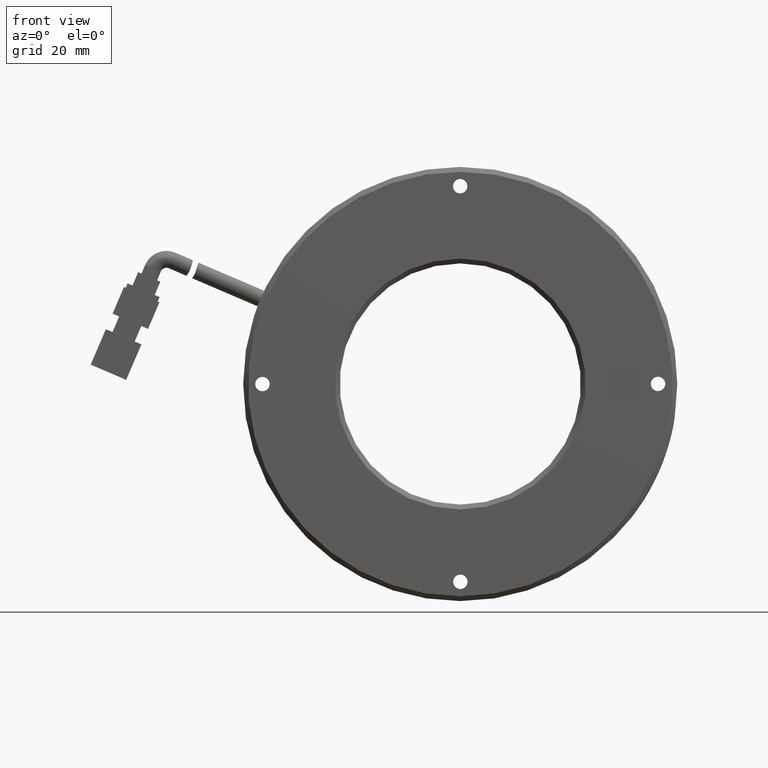
[diagram: clean part render]
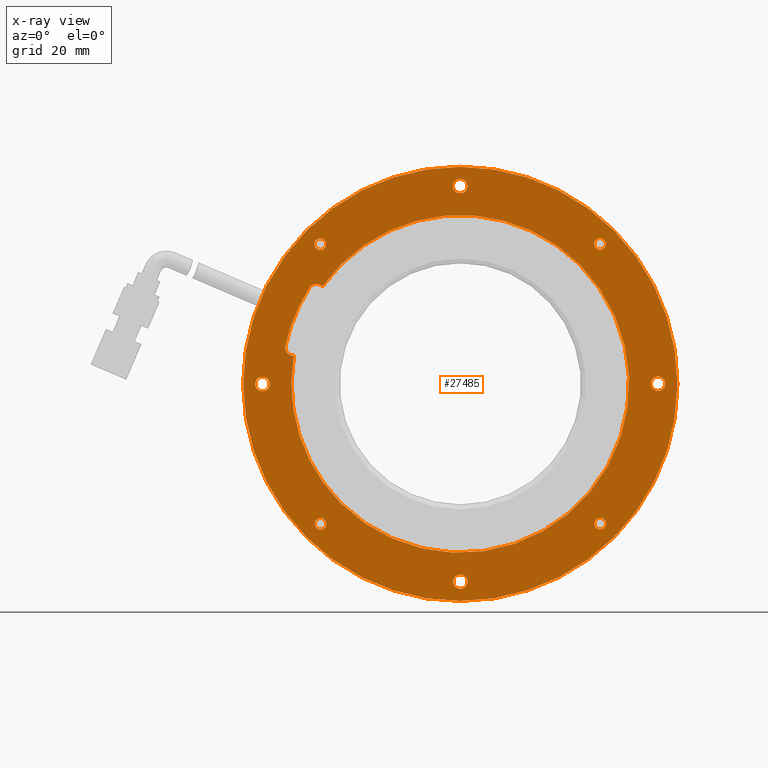
[diagram: x-ray — body ghosted, one internal face saturated and labeled with its STEP entity id]
A machine part, front view, then the same camera in x-ray: the body is ghosted and one INTERNAL B-rep face — a face not visible from any outside direction — is saturated and labeled: STEP entity #27485.
In plain terms, the highlighted planar face has unit normal (-0, 1, -0).
Its self-contained STEP definition (entity closure, byte-faithful):
#199 = FACE_BOUND ( 'NONE', #1518, .T. ) ;
#366 = CIRCLE ( 'NONE', #2762, 1.800000000000000500 ) ;
#655 = EDGE_CURVE ( 'NONE', #21474, #39424, #39389, .T. ) ;
#687 = CARTESIAN_POINT ( 'NONE',  ( -32.65576092597669300, 5.623552123552117100, 8.000046319809095900 ) ) ;
#764 = EDGE_CURVE ( 'NONE', #16374, #15723, #15733, .T. ) ;
#1182 = FACE_OUTER_BOUND ( 'NONE', #11187, .T. ) ;
#1192 = VERTEX_POINT ( 'NONE', #17764 ) ;
#1518 = EDGE_LOOP ( 'NONE', ( #32297, #32968 ) ) ;
#1611 = CIRCLE ( 'NONE', #38705, 37.10000000000000900 ) ;
#1806 = CIRCLE ( 'NONE', #27610, 1.499999999999990500 ) ;
#2030 = DIRECTION ( 'NONE',  ( -1.163897087407499700E-016, 1.000000000000000000, -2.939373556709199600E-017 ) ) ;
#2126 = CARTESIAN_POINT ( 'NONE',  ( 3.571428571428565800, 5.623552123552121500, 0.0000000000000000000 ) ) ;
#2221 = ORIENTED_EDGE ( 'NONE', *, *, #15111, .F. ) ;
#2762 = AXIS2_PLACEMENT_3D ( 'NONE', #35061, #35135, #35265 ) ;
#3098 = ORIENTED_EDGE ( 'NONE', *, *, #16594, .F. ) ;
#3770 = CIRCLE ( 'NONE', #24900, 1.199999999999998800 ) ;
#4035 = EDGE_CURVE ( 'NONE', #34888, #1192, #366, .T. ) ;
#4200 = CARTESIAN_POINT ( 'NONE',  ( 45.63120003048781800, 5.623552123552126900, 1.095335061818939500 ) ) ;
#4631 = CIRCLE ( 'NONE', #21698, 45.00000000000000000 ) ;
#4735 = AXIS2_PLACEMENT_3D ( 'NONE', #13111, #35174, #16268 ) ;
#4802 = CARTESIAN_POINT ( 'NONE',  ( 3.571428571428565800, 5.623552123552121500, 0.0000000000000000000 ) ) ;
#5056 = ORIENTED_EDGE ( 'NONE', *, *, #19056, .T. ) ;
#5239 = EDGE_CURVE ( 'NONE', #21209, #7420, #39765, .T. ) ;
#5285 = DIRECTION ( 'NONE',  ( 0.7065235946279216900, 9.912705577010326800E-017, 0.7076894871580616800 ) ) ;
#5366 = EDGE_CURVE ( 'NONE', #18545, #23308, #8760, .T. ) ;
#5426 = CIRCLE ( 'NONE', #4735, 45.00000000000000000 ) ;
#5482 = ORIENTED_EDGE ( 'NONE', *, *, #12824, .F. ) ;
#5523 = DIRECTION ( 'NONE',  ( 1.163897087407499700E-016, -1.000000000000000000, 2.939373556709199600E-017 ) ) ;
#5858 = ORIENTED_EDGE ( 'NONE', *, *, #4035, .F. ) ;
#6004 = AXIS2_PLACEMENT_3D ( 'NONE', #31207, #12316, #34376 ) ;
#6154 = VERTEX_POINT ( 'NONE', #14664 ) ;
#6287 = ORIENTED_EDGE ( 'NONE', *, *, #36075, .F. ) ;
#6721 = DIRECTION ( 'NONE',  ( 1.163897087407499700E-016, -1.000000000000000000, 2.939373556709199600E-017 ) ) ;
#6736 = DIRECTION ( 'NONE',  ( 1.163897087407499700E-016, -1.000000000000000000, 2.939373556709199600E-017 ) ) ;
#7018 = AXIS2_PLACEMENT_3D ( 'NONE', #36547, #17655, #39680 ) ;
#7420 = VERTEX_POINT ( 'NONE', #18164 ) ;
#7508 = VERTEX_POINT ( 'NONE', #36253 ) ;
#7644 = CARTESIAN_POINT ( 'NONE',  ( -26.29166871560546100, 5.623552123552118900, 28.11823999515511500 ) ) ;
#7719 = DIRECTION ( 'NONE',  ( -0.7065235946279214700, 0.0000000000000000000, -0.7076894871580617900 ) ) ;
#7733 = ORIENTED_EDGE ( 'NONE', *, *, #38328, .F. ) ;
#7870 = CARTESIAN_POINT ( 'NONE',  ( -26.24386712186973000, 5.623552123552118900, -29.86449635807019500 ) ) ;
#7918 = EDGE_LOOP ( 'NONE', ( #26341, #5056 ) ) ;
#7929 = ORIENTED_EDGE ( 'NONE', *, *, #32040, .F. ) ;
#7974 = DIRECTION ( 'NONE',  ( 0.7065235946279216900, 9.637352644315595200E-017, 0.7076894871580614600 ) ) ;
#8032 = DIRECTION ( 'NONE',  ( -1.163897087407499700E-016, 1.000000000000000000, -2.939373556709199600E-017 ) ) ;
#8086 = EDGE_CURVE ( 'NONE', #6154, #39620, #29430, .T. ) ;
#8388 = DIRECTION ( 'NONE',  ( 1.163897087407499700E-016, -1.000000000000000000, 2.939373556709199600E-017 ) ) ;
#8394 = CARTESIAN_POINT ( 'NONE',  ( -25.39603880831622700, 5.623552123552118900, -29.01526897348052400 ) ) ;
#8580 = FACE_BOUND ( 'NONE', #16643, .T. ) ;
#8718 = AXIS2_PLACEMENT_3D ( 'NONE', #2126, #24190, #5285 ) ;
#8760 = CIRCLE ( 'NONE', #30034, 1.499999999999996700 ) ;
#9268 = EDGE_LOOP ( 'NONE', ( #35212, #2221, #7733, #6287, #15543, #23035, #5858 ) ) ;
#9442 = CIRCLE ( 'NONE', #17074, 1.199999999999998800 ) ;
#9506 = ORIENTED_EDGE ( 'NONE', *, *, #20992, .F. ) ;
#9570 = FACE_BOUND ( 'NONE', #13232, .T. ) ;
#9824 = CARTESIAN_POINT ( 'NONE',  ( 33.38672426472686500, 5.623552123552124200, 29.86449635807019800 ) ) ;
#10085 = DIRECTION ( 'NONE',  ( -1.163897087407499700E-016, 1.000000000000000000, -2.939373556709199600E-017 ) ) ;
#10247 = CARTESIAN_POINT ( 'NONE',  ( -25.44384040205195800, 5.623552123552118900, 28.96746737974478900 ) ) ;
#10606 = DIRECTION ( 'NONE',  ( -1.163897087407499700E-016, 1.000000000000000000, -2.939373556709199600E-017 ) ) ;
#10897 = CARTESIAN_POINT ( 'NONE',  ( -37.42855749568880700, 5.623552123552118000, -0.03380083108155823600 ) ) ;
#11187 = EDGE_LOOP ( 'NONE', ( #26153, #7929 ) ) ;
#11538 = DIRECTION ( 'NONE',  ( 0.7065235946279211400, 0.0000000000000000000, 0.7076894871580620100 ) ) ;
#11756 = VERTEX_POINT ( 'NONE', #13660 ) ;
#12061 = DIRECTION ( 'NONE',  ( 1.163897087407499700E-016, -1.000000000000000000, 2.939373556709199000E-017 ) ) ;
#12316 = DIRECTION ( 'NONE',  ( -1.163897087407499700E-016, 1.000000000000000000, -2.939373556709199600E-017 ) ) ;
#12360 = CARTESIAN_POINT ( 'NONE',  ( -28.27459835068420100, 5.623552123552118900, 31.79356175825647700 ) ) ;
#12601 = DIRECTION ( 'NONE',  ( 1.163897087407499700E-016, -1.000000000000000000, 2.939373556709199000E-017 ) ) ;
#12717 = EDGE_LOOP ( 'NONE', ( #5482, #36063 ) ) ;
#12732 = CARTESIAN_POINT ( 'NONE',  ( -30.89810752718073800, 5.623552123552117100, 7.611903910761753900 ) ) ;
#12824 = EDGE_CURVE ( 'NONE', #39424, #21474, #28146, .T. ) ;
#12914 = CARTESIAN_POINT ( 'NONE',  ( 3.571428571428565800, 5.623552123552121500, 0.0000000000000000000 ) ) ;
#13050 = CARTESIAN_POINT ( 'NONE',  ( 4.597413132288457900, 5.623552123552124200, 42.06152029785445700 ) ) ;
#13111 = CARTESIAN_POINT ( 'NONE',  ( 3.571428571428565800, 5.623552123552121500, 0.0000000000000000000 ) ) ;
#13232 = EDGE_LOOP ( 'NONE', ( #23256, #32615 ) ) ;
#13394 = CIRCLE ( 'NONE', #33890, 1.499999999999994400 ) ;
#13410 = DIRECTION ( 'NONE',  ( 0.7065235946279211400, 0.0000000000000000000, 0.7076894871580620100 ) ) ;
#13660 = CARTESIAN_POINT ( 'NONE',  ( 2.545444010568383800, 5.623552123552122400, -42.06152029785446400 ) ) ;
#13682 = VERTEX_POINT ( 'NONE', #4200 ) ;
#13755 = CARTESIAN_POINT ( 'NONE',  ( -28.22213318682790400, 5.623552123552117100, -31.84602692211277400 ) ) ;
#13786 = CARTESIAN_POINT ( 'NONE',  ( 31.73886923135559000, 5.623552123552124200, -29.81669476433446800 ) ) ;
#14584 = EDGE_CURVE ( 'NONE', #13682, #36189, #28725, .T. ) ;
#14596 = CIRCLE ( 'NONE', #14786, 1.800000000000001800 ) ;
#14664 = CARTESIAN_POINT ( 'NONE',  ( 33.43452585846260000, 5.623552123552124200, -28.11823999515512200 ) ) ;
#14747 = VERTEX_POINT ( 'NONE', #40831 ) ;
#14765 = EDGE_CURVE ( 'NONE', #1192, #31809, #1611, .T. ) ;
#14786 = AXIS2_PLACEMENT_3D ( 'NONE', #12732, #34792, #15888 ) ;
#15111 = EDGE_CURVE ( 'NONE', #7508, #18782, #15305, .T. ) ;
#15305 = CIRCLE ( 'NONE', #8718, 35.00000000000000000 ) ;
#15524 = DIRECTION ( 'NONE',  ( 0.7065235946279216900, 1.030337130463465200E-016, 0.7076894871580615700 ) ) ;
#15543 = ORIENTED_EDGE ( 'NONE', *, *, #23895, .F. ) ;
#15565 = DIRECTION ( 'NONE',  ( -1.163897087407499700E-016, 1.000000000000000000, -2.939373556709199600E-017 ) ) ;
#15723 = VERTEX_POINT ( 'NONE', #21341 ) ;
#15733 = CIRCLE ( 'NONE', #17377, 1.499999999999990500 ) ;
#15888 = DIRECTION ( 'NONE',  ( -0.7076894871580605700, 0.0000000000000000000, 0.7065235946279225800 ) ) ;
#16081 = DIRECTION ( 'NONE',  ( 0.7065235946279230200, 9.912705577010326800E-017, 0.7076894871580603500 ) ) ;
#16268 = DIRECTION ( 'NONE',  ( 0.7065235946279216900, 9.637352644315595200E-017, 0.7076894871580614600 ) ) ;
#16374 = VERTEX_POINT ( 'NONE', #39711 ) ;
#16594 = EDGE_CURVE ( 'NONE', #14747, #32573, #3770, .T. ) ;
#16643 = EDGE_LOOP ( 'NONE', ( #36754, #30280 ) ) ;
#16906 = FACE_BOUND ( 'NONE', #23543, .T. ) ;
#16962 = EDGE_CURVE ( 'NONE', #36189, #13682, #29213, .T. ) ;
#17074 = AXIS2_PLACEMENT_3D ( 'NONE', #8394, #30433, #11538 ) ;
#17377 = AXIS2_PLACEMENT_3D ( 'NONE', #10897, #10606, #7719 ) ;
#17652 = AXIS2_PLACEMENT_3D ( 'NONE', #30971, #12061, #34124 ) ;
#17655 = DIRECTION ( 'NONE',  ( 1.163897087407499700E-016, -1.000000000000000000, 2.939373556709199600E-017 ) ) ;
#17656 = AXIS2_PLACEMENT_3D ( 'NONE', #27255, #8388, #30428 ) ;
#17764 = CARTESIAN_POINT ( 'NONE',  ( -27.73481708218294300, 5.623552123552118900, 19.90801303685858400 ) ) ;
#17850 = ORIENTED_EDGE ( 'NONE', *, *, #30336, .F. ) ;
#17919 = FACE_BOUND ( 'NONE', #12717, .T. ) ;
#18072 = CARTESIAN_POINT ( 'NONE',  ( 35.36499032968504300, 5.623552123552126000, 31.84602692211276700 ) ) ;
#18164 = CARTESIAN_POINT ( 'NONE',  ( -24.54821049476272100, 5.623552123552118900, -28.16604158889084900 ) ) ;
#18383 = CARTESIAN_POINT ( 'NONE',  ( 2.477842348404698300, 5.623552123552124200, 39.93845183638028100 ) ) ;
#18408 = AXIS2_PLACEMENT_3D ( 'NONE', #20901, #2030, #24093 ) ;
#18545 = VERTEX_POINT ( 'NONE', #18383 ) ;
#18609 = AXIS2_PLACEMENT_3D ( 'NONE', #25593, #6721, #28732 ) ;
#18693 = CIRCLE ( 'NONE', #7018, 1.200000000000001300 ) ;
#18782 = VERTEX_POINT ( 'NONE', #26670 ) ;
#18789 = DIRECTION ( 'NONE',  ( -1.163897087407499700E-016, 1.000000000000000000, -2.939373556709199600E-017 ) ) ;
#19056 = EDGE_CURVE ( 'NONE', #15723, #16374, #1806, .T. ) ;
#19435 = CARTESIAN_POINT ( 'NONE',  ( 4.665014794452143400, 5.623552123552122400, -39.93845183638028800 ) ) ;
#19617 = DIRECTION ( 'NONE',  ( 0.7065235946279211400, 0.0000000000000000000, 0.7076894871580620100 ) ) ;
#19756 = DIRECTION ( 'NONE',  ( 1.163897087407499700E-016, -1.000000000000000000, 2.939373556709199600E-017 ) ) ;
#19887 = CARTESIAN_POINT ( 'NONE',  ( 32.53889595117335900, 5.623552123552124200, 29.01526897348052700 ) ) ;
#20233 = CARTESIAN_POINT ( 'NONE',  ( 43.51162924660406600, 5.623552123552126900, -1.027733399655238700 ) ) ;
#20620 = AXIS2_PLACEMENT_3D ( 'NONE', #12914, #34993, #16081 ) ;
#20901 = CARTESIAN_POINT ( 'NONE',  ( 44.57141463854593900, 5.623552123552126900, 0.03380083108184966900 ) ) ;
#20992 = EDGE_CURVE ( 'NONE', #39620, #6154, #37673, .T. ) ;
#21209 = VERTEX_POINT ( 'NONE', #7870 ) ;
#21231 = VERTEX_POINT ( 'NONE', #23867 ) ;
#21341 = CARTESIAN_POINT ( 'NONE',  ( -36.36877210374692700, 5.623552123552118000, 1.027733399655528000 ) ) ;
#21474 = VERTEX_POINT ( 'NONE', #25206 ) ;
#21698 = AXIS2_PLACEMENT_3D ( 'NONE', #4802, #26839, #7974 ) ;
#21996 = AXIS2_PLACEMENT_3D ( 'NONE', #28954, #10085, #32145 ) ;
#22578 = AXIS2_PLACEMENT_3D ( 'NONE', #24423, #5523, #27564 ) ;
#22821 = AXIS2_PLACEMENT_3D ( 'NONE', #25601, #6736, #28744 ) ;
#23035 = ORIENTED_EDGE ( 'NONE', *, *, #14765, .F. ) ;
#23256 = ORIENTED_EDGE ( 'NONE', *, *, #34544, .F. ) ;
#23308 = VERTEX_POINT ( 'NONE', #13050 ) ;
#23424 = ORIENTED_EDGE ( 'NONE', *, *, #37256, .T. ) ;
#23543 = EDGE_LOOP ( 'NONE', ( #3098, #17850 ) ) ;
#23777 = EDGE_CURVE ( 'NONE', #18782, #34888, #32860, .T. ) ;
#23867 = CARTESIAN_POINT ( 'NONE',  ( -30.94255977346659500, 5.623552123552117100, 5.812452883976019900 ) ) ;
#23895 = EDGE_CURVE ( 'NONE', #31809, #21231, #14596, .T. ) ;
#24059 = CIRCLE ( 'NONE', #20620, 35.00000000000000000 ) ;
#24093 = DIRECTION ( 'NONE',  ( -0.7065235946279235800, 0.0000000000000000000, -0.7076894871580596800 ) ) ;
#24190 = DIRECTION ( 'NONE',  ( 1.163897087407499700E-016, -1.000000000000000000, 2.939373556709199600E-017 ) ) ;
#24364 = VERTEX_POINT ( 'NONE', #19435 ) ;
#24372 = FACE_BOUND ( 'NONE', #7918, .T. ) ;
#24423 = CARTESIAN_POINT ( 'NONE',  ( 32.53889595117335900, 5.623552123552124200, 29.01526897348052700 ) ) ;
#24900 = AXIS2_PLACEMENT_3D ( 'NONE', #10247, #32290, #13410 ) ;
#25206 = CARTESIAN_POINT ( 'NONE',  ( 31.69106763761985600, 5.623552123552124200, 28.16604158889085200 ) ) ;
#25330 = FACE_BOUND ( 'NONE', #33976, .T. ) ;
#25593 = CARTESIAN_POINT ( 'NONE',  ( 3.571428571428565800, 5.623552123552121500, 0.0000000000000000000 ) ) ;
#25601 = CARTESIAN_POINT ( 'NONE',  ( 32.58669754490909300, 5.623552123552124200, -28.96746737974479700 ) ) ;
#26153 = ORIENTED_EDGE ( 'NONE', *, *, #35534, .F. ) ;
#26157 = DIRECTION ( 'NONE',  ( -0.7065235946279202500, 0.0000000000000000000, -0.7076894871580629000 ) ) ;
#26203 = DIRECTION ( 'NONE',  ( -1.163897087407499700E-016, 1.000000000000000000, -2.939373556709199600E-017 ) ) ;
#26225 = ORIENTED_EDGE ( 'NONE', *, *, #8086, .F. ) ;
#26294 = CARTESIAN_POINT ( 'NONE',  ( 3.537627740346577500, 5.623552123552124200, 40.99998606711736900 ) ) ;
#26341 = ORIENTED_EDGE ( 'NONE', *, *, #764, .T. ) ;
#26491 = EDGE_CURVE ( 'NONE', #23308, #18545, #40839, .T. ) ;
#26670 = CARTESIAN_POINT ( 'NONE',  ( -24.97709561632381500, 5.623552123552118900, 20.24800648709194200 ) ) ;
#26743 = AXIS2_PLACEMENT_3D ( 'NONE', #34473, #15565, #37601 ) ;
#26839 = DIRECTION ( 'NONE',  ( -1.163897087407499700E-016, 1.000000000000000000, -2.939373556709199600E-017 ) ) ;
#26903 = CARTESIAN_POINT ( 'NONE',  ( 3.605229402510262900, 5.623552123552122400, -40.99998606711737600 ) ) ;
#27255 = CARTESIAN_POINT ( 'NONE',  ( 32.58669754490909300, 5.623552123552124200, -28.96746737974479700 ) ) ;
#27485 = ADVANCED_FACE ( 'NONE', ( #33714, #1182, #17919, #25330, #9570, #16906, #8580, #199, #32713, #24372 ), #40584, .F. ) ;
#27564 = DIRECTION ( 'NONE',  ( 0.7065235946279211400, 0.0000000000000000000, 0.7076894871580620100 ) ) ;
#27610 = AXIS2_PLACEMENT_3D ( 'NONE', #37634, #18789, #40814 ) ;
#27975 = ORIENTED_EDGE ( 'NONE', *, *, #29128, .T. ) ;
#28146 = CIRCLE ( 'NONE', #22578, 1.199999999999998800 ) ;
#28725 = CIRCLE ( 'NONE', #18408, 1.499999999999995600 ) ;
#28732 = DIRECTION ( 'NONE',  ( 0.7065235946279216900, 9.912705577010326800E-017, 0.7076894871580616800 ) ) ;
#28744 = DIRECTION ( 'NONE',  ( 0.7065235946279211400, 0.0000000000000000000, 0.7076894871580620100 ) ) ;
#28954 = CARTESIAN_POINT ( 'NONE',  ( 3.605229402510262900, 5.623552123552122400, -40.99998606711737600 ) ) ;
#29128 = EDGE_CURVE ( 'NONE', #11756, #24364, #31481, .T. ) ;
#29213 = CIRCLE ( 'NONE', #26743, 1.499999999999994900 ) ;
#29253 = AXIS2_PLACEMENT_3D ( 'NONE', #12360, #34425, #15524 ) ;
#29430 = CIRCLE ( 'NONE', #17656, 1.199999999999998800 ) ;
#29525 = EDGE_LOOP ( 'NONE', ( #27975, #23424 ) ) ;
#30034 = AXIS2_PLACEMENT_3D ( 'NONE', #26294, #26203, #26157 ) ;
#30075 = DIRECTION ( 'NONE',  ( -0.7065235946279192500, 0.0000000000000000000, -0.7076894871580640100 ) ) ;
#30280 = ORIENTED_EDGE ( 'NONE', *, *, #26491, .T. ) ;
#30336 = EDGE_CURVE ( 'NONE', #32573, #14747, #18693, .T. ) ;
#30428 = DIRECTION ( 'NONE',  ( 0.7065235946279211400, 0.0000000000000000000, 0.7076894871580620100 ) ) ;
#30433 = DIRECTION ( 'NONE',  ( 1.163897087407499700E-016, -1.000000000000000000, 2.939373556709199600E-017 ) ) ;
#30645 = DIRECTION ( 'NONE',  ( 0.7065235946279225800, 0.0000000000000000000, 0.7076894871580605700 ) ) ;
#30702 = CARTESIAN_POINT ( 'NONE',  ( -21.15689724054869500, 5.623552123552118000, -24.76913205053216100 ) ) ;
#30726 = DIRECTION ( 'NONE',  ( 1.163897087407499700E-016, -1.000000000000000000, 2.939373556709199600E-017 ) ) ;
#30883 = CARTESIAN_POINT ( 'NONE',  ( -25.39603880831622700, 5.623552123552118900, -29.01526897348052400 ) ) ;
#30891 = AXIS2_PLACEMENT_3D ( 'NONE', #19887, #19756, #19617 ) ;
#30971 = CARTESIAN_POINT ( 'NONE',  ( -26.21591567580825500, 5.623552123552118900, 18.94212561188970100 ) ) ;
#31207 = CARTESIAN_POINT ( 'NONE',  ( 3.537627740346577500, 5.623552123552124200, 40.99998606711736900 ) ) ;
#31481 = CIRCLE ( 'NONE', #21996, 1.499999999999996700 ) ;
#31505 = CARTESIAN_POINT ( 'NONE',  ( 3.571428571428565800, 5.623552123552121500, 0.0000000000000000000 ) ) ;
#31809 = VERTEX_POINT ( 'NONE', #687 ) ;
#31924 = CARTESIAN_POINT ( 'NONE',  ( -27.48975675269276700, 5.623552123552118900, 20.21386808221996000 ) ) ;
#32040 = EDGE_CURVE ( 'NONE', #36155, #37383, #4631, .T. ) ;
#32145 = DIRECTION ( 'NONE',  ( -0.7065235946279202500, 0.0000000000000000000, -0.7076894871580629000 ) ) ;
#32290 = DIRECTION ( 'NONE',  ( 1.163897087407499700E-016, -1.000000000000000000, 2.939373556709199600E-017 ) ) ;
#32297 = ORIENTED_EDGE ( 'NONE', *, *, #16962, .T. ) ;
#32573 = VERTEX_POINT ( 'NONE', #7644 ) ;
#32615 = ORIENTED_EDGE ( 'NONE', *, *, #5239, .F. ) ;
#32622 = CIRCLE ( 'NONE', #18609, 35.00000000000000000 ) ;
#32713 = FACE_BOUND ( 'NONE', #29525, .T. ) ;
#32860 = CIRCLE ( 'NONE', #17652, 1.800000000000000500 ) ;
#32968 = ORIENTED_EDGE ( 'NONE', *, *, #14584, .T. ) ;
#33714 = FACE_BOUND ( 'NONE', #9268, .T. ) ;
#33890 = AXIS2_PLACEMENT_3D ( 'NONE', #26903, #8032, #30075 ) ;
#33976 = EDGE_LOOP ( 'NONE', ( #26225, #9506 ) ) ;
#34124 = DIRECTION ( 'NONE',  ( -0.7076894871580611300, 0.0000000000000000000, 0.7065235946279221400 ) ) ;
#34376 = DIRECTION ( 'NONE',  ( -0.7065235946279192500, 0.0000000000000000000, -0.7076894871580640100 ) ) ;
#34425 = DIRECTION ( 'NONE',  ( -1.163897087407499700E-016, 1.000000000000000000, -2.939373556709199600E-017 ) ) ;
#34473 = CARTESIAN_POINT ( 'NONE',  ( 44.57141463854593900, 5.623552123552126900, 0.03380083108184966900 ) ) ;
#34544 = EDGE_CURVE ( 'NONE', #7420, #21209, #9442, .T. ) ;
#34574 = VERTEX_POINT ( 'NONE', #30702 ) ;
#34656 = DIRECTION ( 'NONE',  ( -0.7076894871580615700, -7.013706776186549800E-017, 0.7065235946279216900 ) ) ;
#34792 = DIRECTION ( 'NONE',  ( 1.163897087407499700E-016, -1.000000000000000000, 2.939373556709199000E-017 ) ) ;
#34888 = VERTEX_POINT ( 'NONE', #31924 ) ;
#34993 = DIRECTION ( 'NONE',  ( 1.163897087407499700E-016, -1.000000000000000000, 2.939373556709199600E-017 ) ) ;
#35061 = CARTESIAN_POINT ( 'NONE',  ( -26.21591567580825500, 5.623552123552118900, 18.94212561188970100 ) ) ;
#35135 = DIRECTION ( 'NONE',  ( 1.163897087407499700E-016, -1.000000000000000000, 2.939373556709199000E-017 ) ) ;
#35174 = DIRECTION ( 'NONE',  ( -1.163897087407499700E-016, 1.000000000000000000, -2.939373556709199600E-017 ) ) ;
#35212 = ORIENTED_EDGE ( 'NONE', *, *, #23777, .F. ) ;
#35265 = DIRECTION ( 'NONE',  ( -0.7076894871580611300, 0.0000000000000000000, 0.7065235946279221400 ) ) ;
#35534 = EDGE_CURVE ( 'NONE', #37383, #36155, #5426, .T. ) ;
#36063 = ORIENTED_EDGE ( 'NONE', *, *, #655, .F. ) ;
#36075 = EDGE_CURVE ( 'NONE', #21231, #34574, #24059, .T. ) ;
#36155 = VERTEX_POINT ( 'NONE', #13755 ) ;
#36189 = VERTEX_POINT ( 'NONE', #20233 ) ;
#36253 = CARTESIAN_POINT ( 'NONE',  ( 28.29975438340582600, 5.623552123552125100, 24.76913205053215700 ) ) ;
#36547 = CARTESIAN_POINT ( 'NONE',  ( -25.44384040205195800, 5.623552123552118900, 28.96746737974478900 ) ) ;
#36754 = ORIENTED_EDGE ( 'NONE', *, *, #5366, .T. ) ;
#37123 = AXIS2_PLACEMENT_3D ( 'NONE', #30883, #30726, #30645 ) ;
#37256 = EDGE_CURVE ( 'NONE', #24364, #11756, #13394, .T. ) ;
#37383 = VERTEX_POINT ( 'NONE', #18072 ) ;
#37601 = DIRECTION ( 'NONE',  ( -0.7065235946279239100, 0.0000000000000000000, -0.7076894871580593500 ) ) ;
#37634 = CARTESIAN_POINT ( 'NONE',  ( -37.42855749568880700, 5.623552123552118000, -0.03380083108155823600 ) ) ;
#37673 = CIRCLE ( 'NONE', #22821, 1.199999999999998800 ) ;
#38328 = EDGE_CURVE ( 'NONE', #34574, #7508, #32622, .T. ) ;
#38705 = AXIS2_PLACEMENT_3D ( 'NONE', #31505, #12601, #34656 ) ;
#39389 = CIRCLE ( 'NONE', #30891, 1.199999999999998800 ) ;
#39424 = VERTEX_POINT ( 'NONE', #9824 ) ;
#39620 = VERTEX_POINT ( 'NONE', #13786 ) ;
#39680 = DIRECTION ( 'NONE',  ( 0.7065235946279225800, 0.0000000000000000000, 0.7076894871580605700 ) ) ;
#39711 = CARTESIAN_POINT ( 'NONE',  ( -38.48834288763067900, 5.623552123552118000, -1.095335061818644200 ) ) ;
#39765 = CIRCLE ( 'NONE', #37123, 1.200000000000001300 ) ;
#40584 = PLANE ( 'NONE',  #29253 ) ;
#40814 = DIRECTION ( 'NONE',  ( -0.7065235946279214700, 0.0000000000000000000, -0.7076894871580617900 ) ) ;
#40831 = CARTESIAN_POINT ( 'NONE',  ( -24.59601208849845100, 5.623552123552118900, 29.81669476433446100 ) ) ;
#40839 = CIRCLE ( 'NONE', #6004, 1.499999999999994400 ) ;